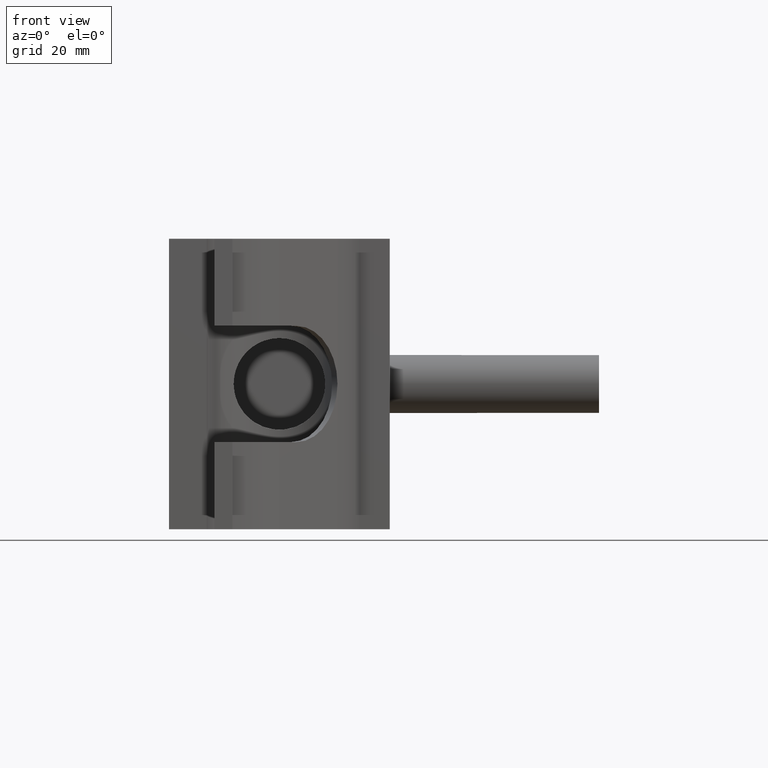
[diagram: clean part render]
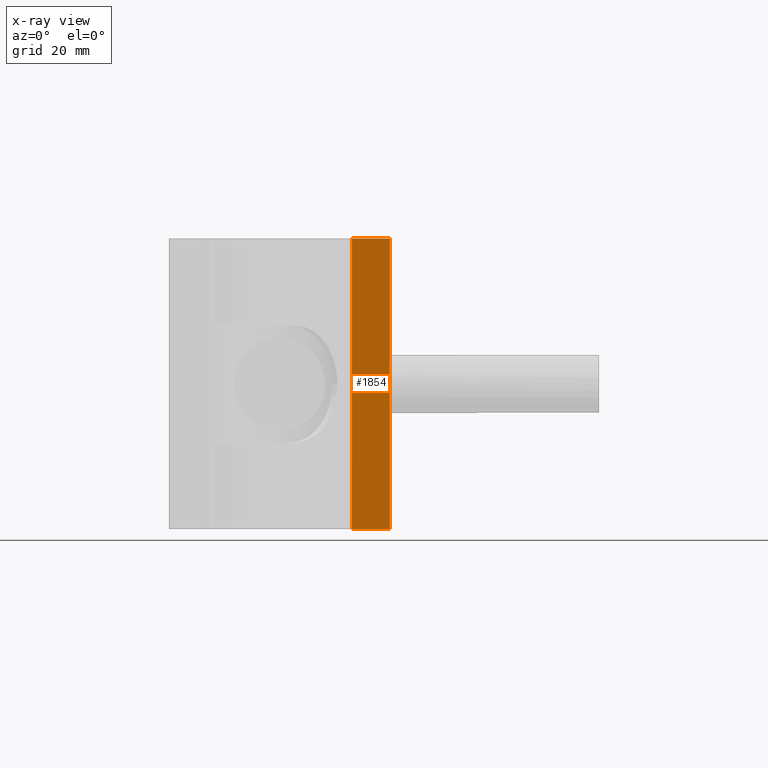
[diagram: x-ray — body ghosted, one internal face saturated and labeled with its STEP entity id]
A machine part, front view, then the same camera in x-ray: the body is ghosted and one INTERNAL B-rep face — a face not visible from any outside direction — is saturated and labeled: STEP entity #1854.
In plain terms, the highlighted planar face has unit normal (-0, 1, 0).
Its self-contained STEP definition (entity closure, byte-faithful):
#160=LINE('',#3632,#304);
#161=LINE('',#3634,#305);
#162=LINE('',#3636,#306);
#163=LINE('',#3637,#307);
#304=VECTOR('',#2567,13.00005000005);
#305=VECTOR('',#2568,100.);
#306=VECTOR('',#2569,13.00005000005);
#307=VECTOR('',#2570,100.);
#511=FACE_OUTER_BOUND('',#646,.T.);
#646=EDGE_LOOP('',(#1629,#1630,#1631,#1632));
#898=VERTEX_POINT('',#3630);
#899=VERTEX_POINT('',#3631);
#900=VERTEX_POINT('',#3633);
#901=VERTEX_POINT('',#3635);
#1149=EDGE_CURVE('',#898,#899,#160,.T.);
#1150=EDGE_CURVE('',#900,#898,#161,.T.);
#1151=EDGE_CURVE('',#901,#900,#162,.T.);
#1152=EDGE_CURVE('',#901,#899,#163,.T.);
#1629=ORIENTED_EDGE('',*,*,#1149,.F.);
#1630=ORIENTED_EDGE('',*,*,#1150,.F.);
#1631=ORIENTED_EDGE('',*,*,#1151,.F.);
#1632=ORIENTED_EDGE('',*,*,#1152,.T.);
#1745=PLANE('',#2051);
#1854=ADVANCED_FACE('',(#511),#1745,.T.);
#2051=AXIS2_PLACEMENT_3D('',#3629,#2565,#2566);
#2565=DIRECTION('center_axis',(-2.00159631228742E-18,1.,0.));
#2566=DIRECTION('ref_axis',(1.,2.08166817117217E-18,0.));
#2567=DIRECTION('',(1.,2.00159631228742E-18,0.));
#2568=DIRECTION('',(0.,0.,-1.));
#2569=DIRECTION('',(-1.,-2.00159631228742E-18,0.));
#2570=DIRECTION('',(0.,0.,-1.));
#3629=CARTESIAN_POINT('Origin',(24.99994999995,0.0500000000000078,50.));
#3630=CARTESIAN_POINT('',(24.99994999995,0.0500000000000078,-50.));
#3631=CARTESIAN_POINT('',(38.,0.0500000000000078,-50.));
#3632=CARTESIAN_POINT('',(16.3999906249924,0.0500000000000078,-50.));
#3633=CARTESIAN_POINT('',(24.99994999995,0.0500000000000078,50.));
#3634=CARTESIAN_POINT('',(24.99994999995,0.0500000000000078,50.));
#3635=CARTESIAN_POINT('',(38.,0.0500000000000078,50.));
#3636=CARTESIAN_POINT('',(38.,0.0500000000000078,50.));
#3637=CARTESIAN_POINT('',(38.,0.0500000000000078,50.));